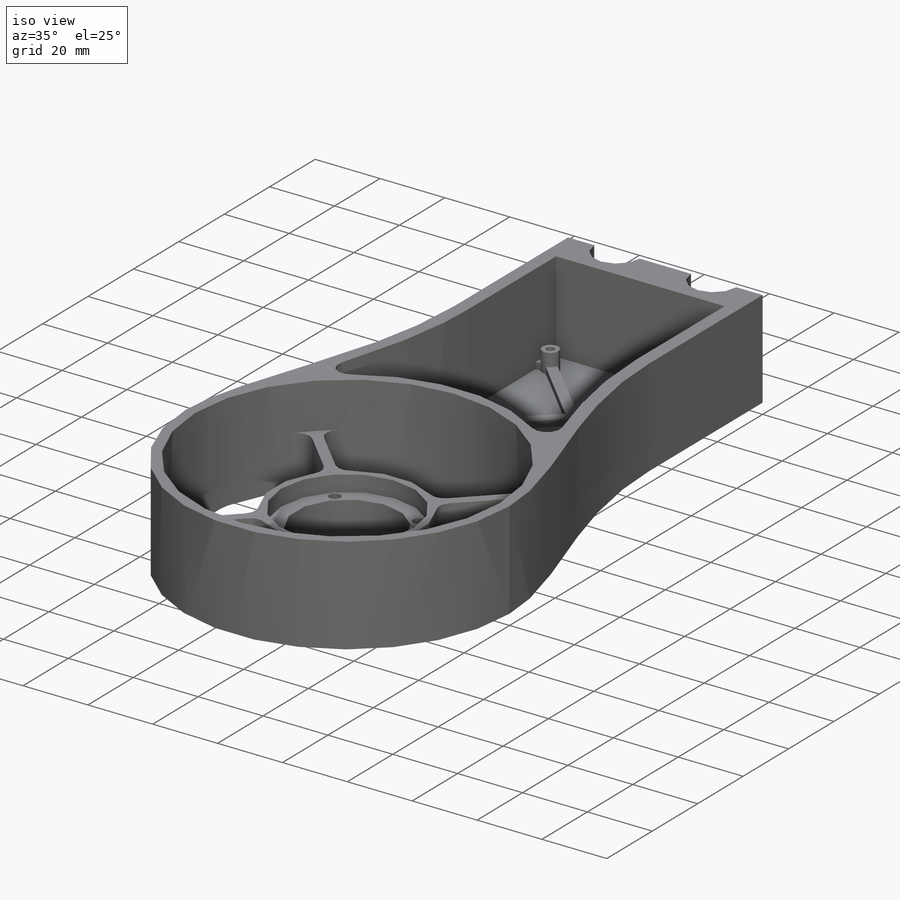
[diagram: iso view]
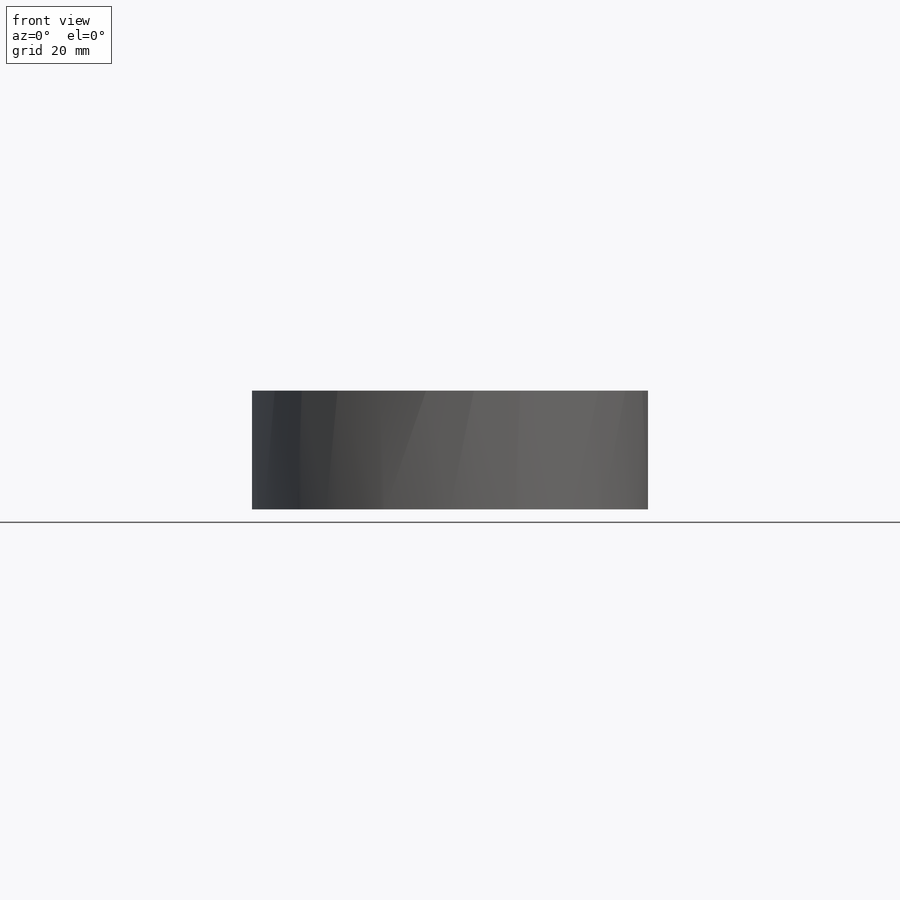
[diagram: front view]
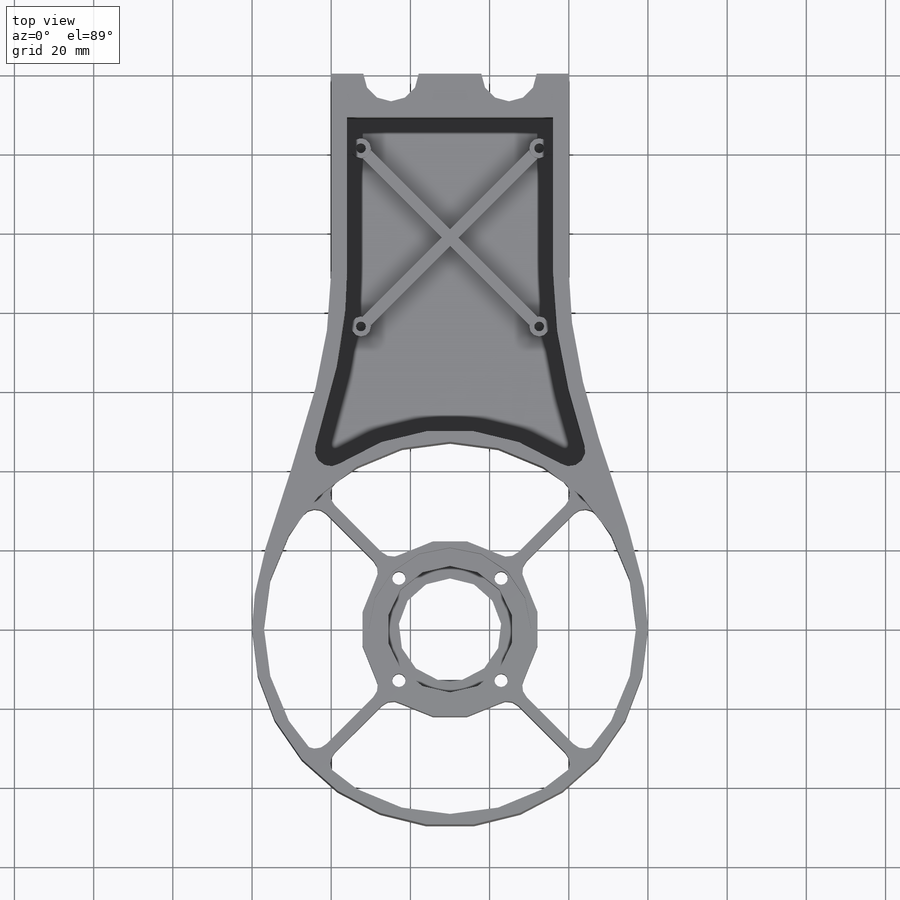
[diagram: top view]
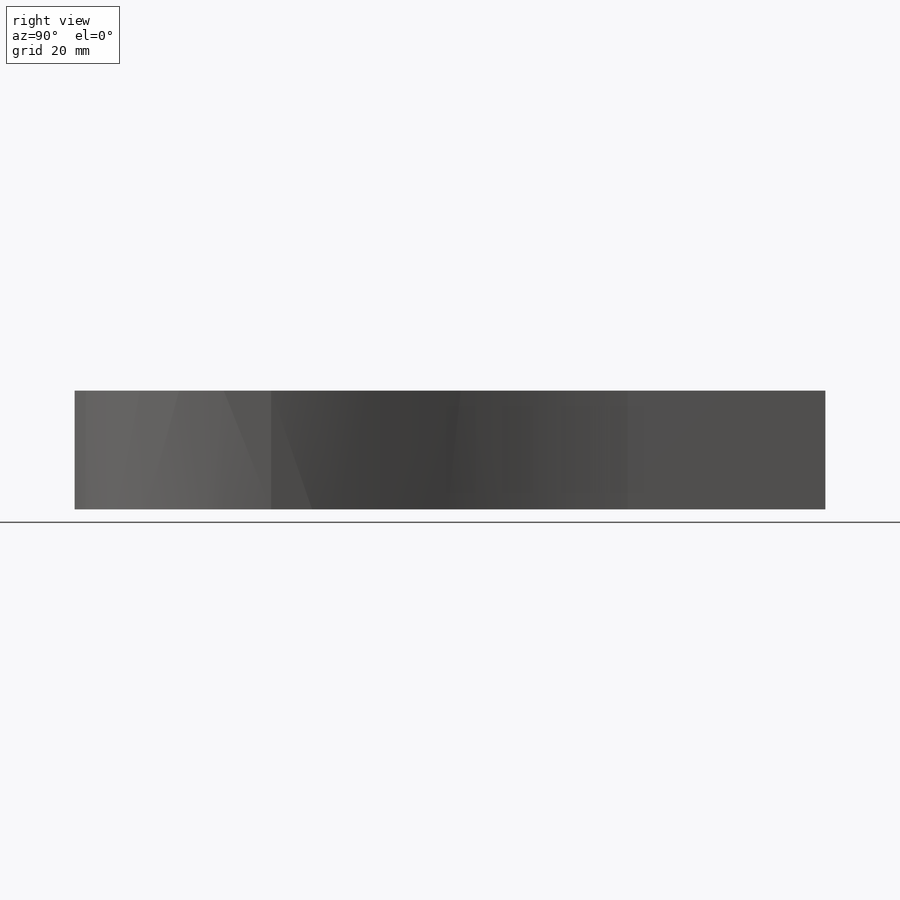
[diagram: right view]
SOLIDWORKS PART (.sldprt)
format: sldprt  version: not decoded by parser v0  size: 862,208 bytes
history: native  units: mm
features: sketch x22, extrude x11, cut_extrude x4, thread x4, hole x2, fillet x2, material x1 (+11 scaffold rows collapsed)
feature tree (57):
  scaffold x11  (default folders/planes/origin — collapsed)
  material  "3.1355 (EN-AW 2024)"
  sketch  "Эскиз1"  dims[c1.D3=7.0mm c1.D5=94.0mm c1.D6=100.0mm c1.D1=60.0mm c1.D2=8.0mm c1.D4=140.0mm c2.D2=29.8mm]
  extrude  "Бобышка-Вытянуть1"  Depth=30mm
  sketch  "Эскиз2"  dims[D1=0.0mm D2=3.0mm]
  cut_extrude  "Вырез-Вытянуть1"  [1 undecoded]
  sketch  "Эскиз3"  dims[D1=26.0mm D2=45.0mm]
  extrude  "Бобышка-Вытянуть2"  Depth=16mm
  sketch  "Эскиз4"  dims[D1=41.0mm D2=45.0mm]
  cut_extrude  "Вырез-Вытянуть2"  Depth=5mm
  sketch  "Эскиз5"  dims[D1=32.0mm]
  cut_extrude  "Вырез-Вытянуть3"  Depth=10mm
  sketch  "Эскиз6"  dims[c1.D1=36.5mm c1.D2=~13.321108mm c2.D2=45.0deg c2.D3=4.0]
  hole  "Отверстие с зазором M31"  [1 undecoded]
  sketch  "Эскиз8"
  sketch  "Эскиз7"  dims[hole-wizard template sketch: 61 standard entries collapsed; hole parameters above]
  sketch  "Эскиз9"
  extrude  "Бобышка-Вытянуть3"  [1 undecoded]
  sketch  "Эскиз10"  dims[c1.D1=47.0mm c2.D1=45.0deg c2.D2=1.5mm c2.D3=1.5mm c3.D2=4.0]
  extrude  "Бобышка-Вытянуть4"  [1 undecoded]
  fillet  "Скругление1"  Radius=4mm
  fillet  "Скругление2"  Radius=4mm
  sketch  "Эскиз11"
  extrude  "Бобышка-Вытянуть5"  [1 undecoded]
  sketch  "Эскиз12"
  extrude  "Бобышка-Вытянуть6"  [1 undecoded]
  sketch  "Эскиз13"  dims[D1=1.0mm]
  extrude  "Бобышка-Вытянуть7"  [1 undecoded]
  sketch  "Эскиз14"
  cut_extrude  "Вырез-Вытянуть4"  [1 undecoded]
  sketch  "Эскиз15"  dims[D1=4.0mm D2=4.0mm]
  extrude  "Бобышка-Вытянуть9"  Depth=30mm
  sketch  "Эскиз16"
  extrude  "Бобышка-Вытянуть10"  Depth=2mm
  sketch  "Эскиз17"  dims[D1=8.0]
  sketch  "Эскиз18"  dims[c1.D4=3.0mm c1.D1=45.0mm c1.D3=1.0mm c1.D5=5.0mm c2.D3=1.0mm c2.D5=5.0mm c2.D2=2.5mm]
  sketch  "Эскиз19"  dims[D1=5.0mm]
  extrude  "Бобышка-Вытянуть11"  Depth=6mm
  hole  "Отверстие обработанное метчиком M3x0.51"  [1 undecoded]
  sketch  "Эскиз21"
  sketch  "Эскиз20"  dims[hole-wizard template sketch: 47 standard entries collapsed; hole parameters kept: c15.Глубина сверла=6.0mm c15.D3=~14.816244mm c15.Угол заточки сверла=118.0deg]
  thread  "Отверстие резьбы1"  Diameter=6mm  [1 undecoded]
  thread  "Отверстие резьбы2"  Diameter=6mm  [1 undecoded]
  thread  "Отверстие резьбы3"  Diameter=6mm  [1 undecoded]
  thread  "Отверстие резьбы4"  Diameter=6mm  [1 undecoded]
  sketch  "Эскиз22"  dims[D1=1.5mm D2=1.5mm D3=1.5mm D4=1.5mm D5=0.0mm D6=0.0mm D7=0.0mm D8=0.0mm]
  extrude  "Бобышка-Вытянуть12"  Depth=2mm
decode coverage: 29 of 45 modeling features carry decoded parameters
note: ~ marks probable driven/reference dimensions
note: 13 parameter values undecoded
summary: no parameter record found for 9 features
note: suppression state not decoded; provenance and decode notes live in map.json
